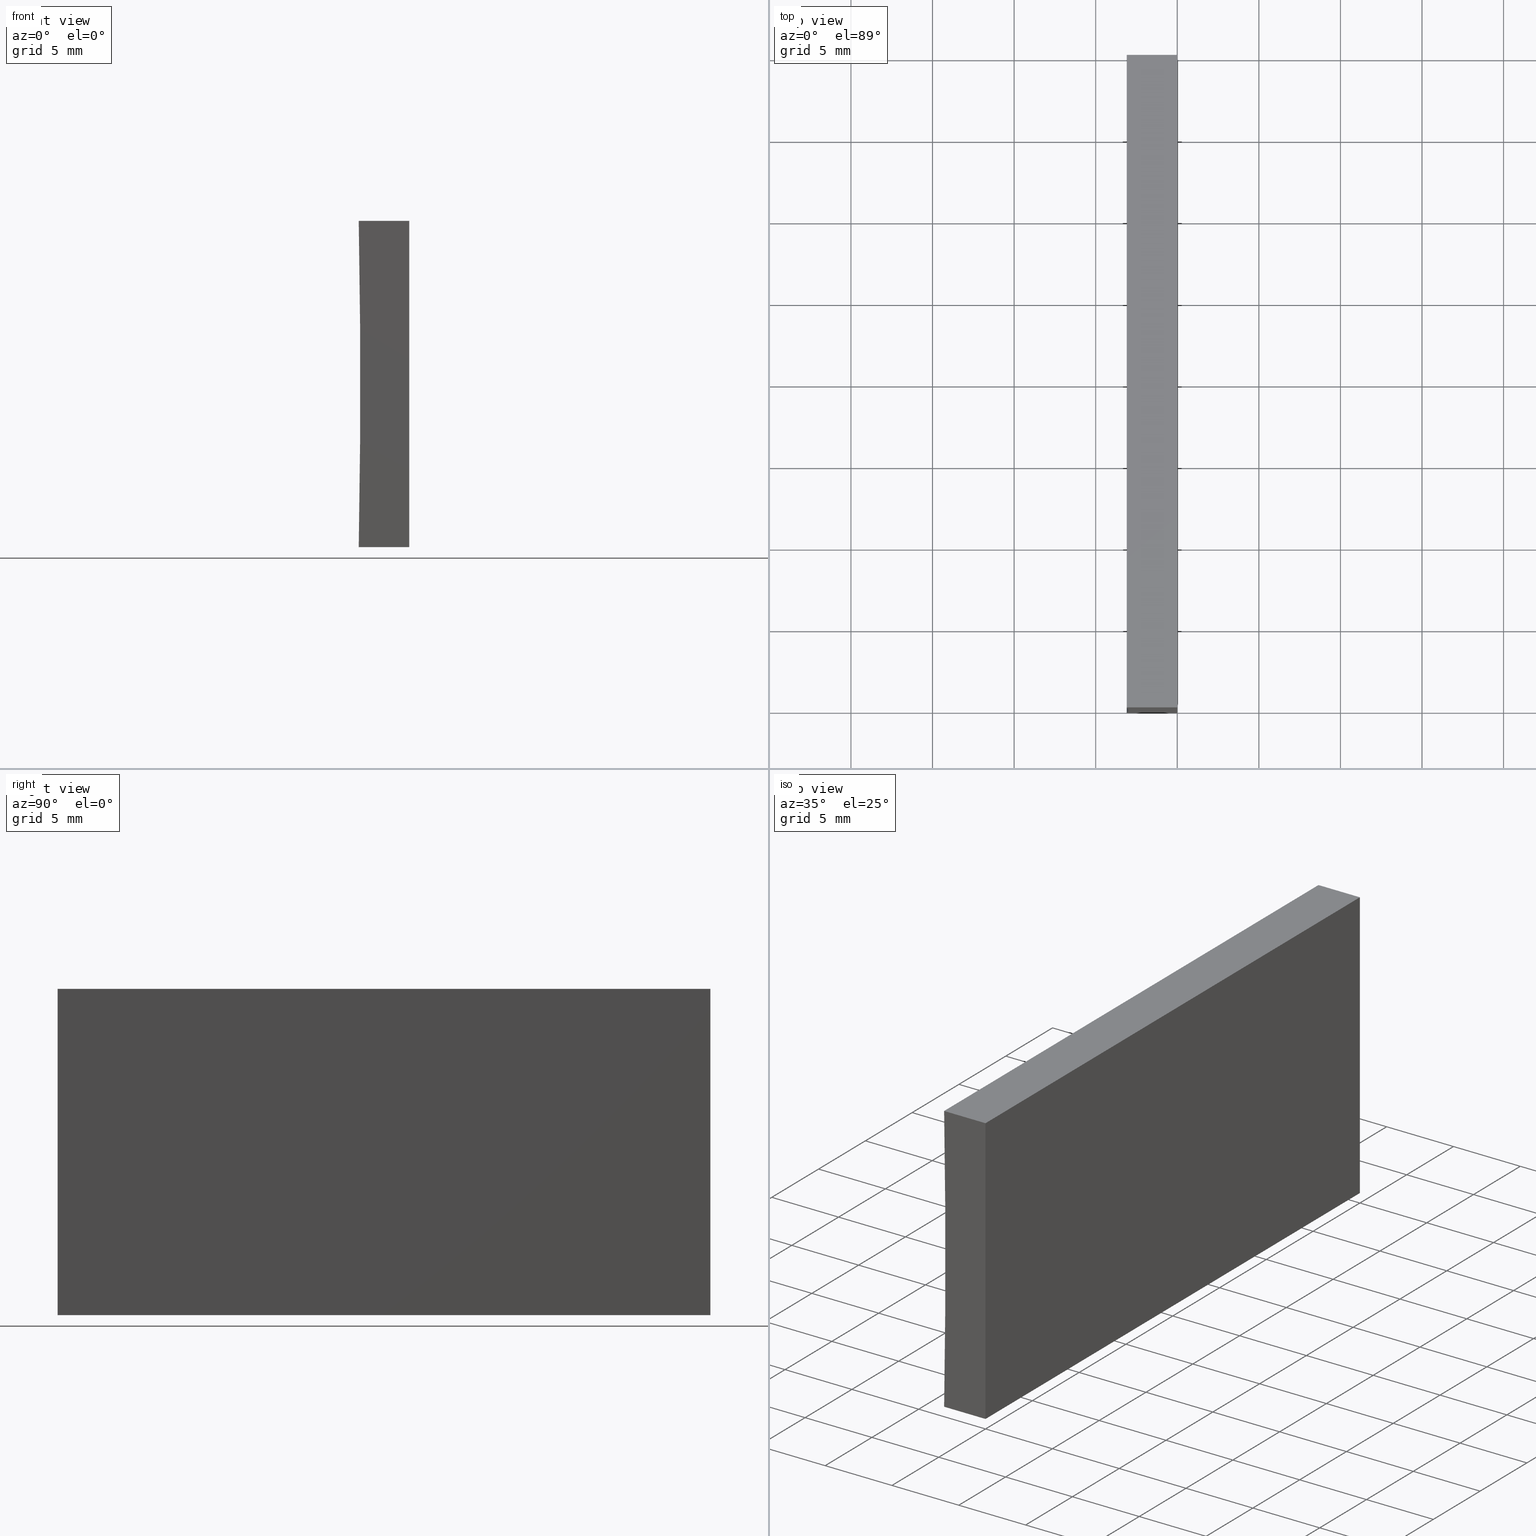
[diagram: canonical four-view strip — front | top / right | iso, engineering-drawing reading convention]
A machine part, canonical four-view strip (front | top / right | iso — engineering-drawing reading convention). The complete STEP part file that produces these views, byte-faithful:
ISO-10303-21;
HEADER;
FILE_DESCRIPTION (( 'STEP AP214' ),
    '1' );
FILE_NAME ('155362.STEP',
    '2019-06-28T07:38:13',
    ( 'user' ),
    ( '΢���й�' ),
    'SwSTEP 2.0',
    'SolidWorks 2016',
    '' );
FILE_SCHEMA (( 'AUTOMOTIVE_DESIGN' ));
ENDSEC;

DATA;
#1 = ORIENTED_EDGE ( 'NONE', *, *, #39, .T. ) ;
#2 = LINE ( 'NONE', #131, #57 ) ;
#3 = CARTESIAN_POINT ( 'NONE',  ( -3.096758283828826600, 40.00000000000000000, 5.204170427930421300E-014 ) ) ;
#4 = ORIENTED_EDGE ( 'NONE', *, *, #154, .F. ) ;
#5 = CARTESIAN_POINT ( 'NONE',  ( 0.0000000000000000000, 40.00000000000000000, 0.0000000000000000000 ) ) ;
#6 = APPLICATION_PROTOCOL_DEFINITION ( 'draft international standard', 'automotive_design', 1998, #8 ) ;
#7 = ORIENTED_EDGE ( 'NONE', *, *, #34, .T. ) ;
#8 = APPLICATION_CONTEXT ( 'automotive_design' ) ;
#9 = SURFACE_SIDE_STYLE ('',( #188 ) ) ;
#10 = VECTOR ( 'NONE', #46, 1000.000000000000000 ) ;
#11 =( GEOMETRIC_REPRESENTATION_CONTEXT ( 3 ) GLOBAL_UNCERTAINTY_ASSIGNED_CONTEXT ( ( #156 ) ) GLOBAL_UNIT_ASSIGNED_CONTEXT ( ( #178, #122, #88 ) ) REPRESENTATION_CONTEXT ( 'NONE', 'WORKASPACE' ) );
#12 = VERTEX_POINT ( 'NONE', #170 ) ;
#13 = PLANE ( 'NONE',  #51 ) ;
#14 = LINE ( 'NONE', #71, #115 ) ;
#15 = PLANE ( 'NONE',  #185 ) ;
#16 = UNCERTAINTY_MEASURE_WITH_UNIT (LENGTH_MEASURE( 1.000000000000000100E-005 ), #75, 'distance_accuracy_value', 'NONE');
#17 = EDGE_CURVE ( 'NONE', #120, #93, #117, .T. ) ;
#18 = ADVANCED_FACE ( 'NONE', ( #121 ), #162, .F. ) ;
#19 = EDGE_CURVE ( 'NONE', #52, #82, #148, .T. ) ;
#20 = CARTESIAN_POINT ( 'NONE',  ( -519.7999999999999500, 0.0000000000000000000, 10.00000000000006200 ) ) ;
#21 = CARTESIAN_POINT ( 'NONE',  ( 0.0000000000000000000, 40.00000000000000000, 0.0000000000000000000 ) ) ;
#22 = ORIENTED_EDGE ( 'NONE', *, *, #189, .T. ) ;
#23 = CARTESIAN_POINT ( 'NONE',  ( -3.096758283828826600, 0.0000000000000000000, 5.204170427930421300E-014 ) ) ;
#24 = APPLICATION_PROTOCOL_DEFINITION ( 'draft international standard', 'automotive_design', 1998, #174 ) ;
#25 = DIRECTION ( 'NONE',  ( -0.0000000000000000000, -1.000000000000000000, -0.0000000000000000000 ) ) ;
#26 = ORIENTED_EDGE ( 'NONE', *, *, #154, .T. ) ;
#27 = FILL_AREA_STYLE_COLOUR ( '', #203 ) ;
#28 = DIRECTION ( 'NONE',  ( 1.000000000000000000, -0.0000000000000000000, 1.120348000704784800E-015 ) ) ;
#29 = COLOUR_RGB ( '',1.000000000000000000, 1.000000000000000000, 1.000000000000000000 ) ;
#30 = DIRECTION ( 'NONE',  ( 0.0000000000000000000, 1.000000000000000000, 0.0000000000000000000 ) ) ;
#31 = ORIENTED_EDGE ( 'NONE', *, *, #181, .F. ) ;
#32 = DIRECTION ( 'NONE',  ( 0.0000000000000000000, -0.0000000000000000000, 1.000000000000000000 ) ) ;
#33 = EDGE_CURVE ( 'NONE', #153, #93, #177, .T. ) ;
#34 = EDGE_CURVE ( 'NONE', #100, #12, #163, .T. ) ;
#35 = STYLED_ITEM ( 'NONE', ( #200 ), #133 ) ;
#36 = ADVANCED_FACE ( 'NONE', ( #112 ), #13, .F. ) ;
#37 = PRODUCT_DEFINITION ( 'δ֪', '', #143, #172 ) ;
#38 = ORIENTED_EDGE ( 'NONE', *, *, #17, .F. ) ;
#39 = EDGE_CURVE ( 'NONE', #93, #82, #183, .T. ) ;
#40 = DIRECTION ( 'NONE',  ( -0.0000000000000000000, -1.000000000000000000, -0.0000000000000000000 ) ) ;
#41 = MECHANICAL_DESIGN_GEOMETRIC_PRESENTATION_REPRESENTATION (  '', ( #35 ), #68 ) ;
#42 =( GEOMETRIC_REPRESENTATION_CONTEXT ( 3 ) GLOBAL_UNCERTAINTY_ASSIGNED_CONTEXT ( ( #50 ) ) GLOBAL_UNIT_ASSIGNED_CONTEXT ( ( #48, #202, #175 ) ) REPRESENTATION_CONTEXT ( 'NONE', 'WORKASPACE' ) );
#43 = EDGE_CURVE ( 'NONE', #52, #100, #104, .T. ) ;
#44 = ORIENTED_EDGE ( 'NONE', *, *, #19, .F. ) ;
#45 = SHAPE_DEFINITION_REPRESENTATION ( #199, #164 ) ;
#46 = DIRECTION ( 'NONE',  ( -1.000000000000000000, 0.0000000000000000000, 1.120348000704784400E-015 ) ) ;
#47 = CARTESIAN_POINT ( 'NONE',  ( 0.0000000000000000000, 40.00000000000000000, 0.0000000000000000000 ) ) ;
#48 =( LENGTH_UNIT ( ) NAMED_UNIT ( * ) SI_UNIT ( .MILLI., .METRE. ) );
#49 = DIRECTION ( 'NONE',  ( 1.120348000704784400E-015, -0.0000000000000000000, 1.000000000000000000 ) ) ;
#50 = UNCERTAINTY_MEASURE_WITH_UNIT (LENGTH_MEASURE( 1.000000000000000100E-005 ), #48, 'distance_accuracy_value', 'NONE');
#51 = AXIS2_PLACEMENT_3D ( 'NONE', #190, #49, #150 ) ;
#52 = VERTEX_POINT ( 'NONE', #5 ) ;
#53 = DIRECTION ( 'NONE',  ( -1.000000000000000000, 0.0000000000000000000, 1.120348000704784400E-015 ) ) ;
#54 = AXIS2_PLACEMENT_3D ( 'NONE', #55, #195, #83 ) ;
#55 = CARTESIAN_POINT ( 'NONE',  ( 0.0000000000000000000, 0.0000000000000000000, 0.0000000000000000000 ) ) ;
#56 = PRESENTATION_LAYER_ASSIGNMENT (  '', '', ( #158 ) ) ;
#57 = VECTOR ( 'NONE', #28, 1000.000000000000000 ) ;
#58 = EDGE_LOOP ( 'NONE', ( #118, #7, #166, #144 ) ) ;
#59 = EDGE_LOOP ( 'NONE', ( #116, #106, #179, #187 ) ) ;
#60 = PRODUCT_CONTEXT ( 'NONE', #8, 'mechanical' ) ;
#61 = DIRECTION ( 'NONE',  ( 0.0000000000000000000, 1.000000000000000000, 0.0000000000000000000 ) ) ;
#62 = EDGE_LOOP ( 'NONE', ( #1, #44, #31, #86 ) ) ;
#63 = VECTOR ( 'NONE', #76, 1000.000000000000000 ) ;
#64 = ADVANCED_FACE ( 'NONE', ( #69 ), #152, .F. ) ;
#65 = DIRECTION ( 'NONE',  ( -0.0000000000000000000, -1.000000000000000000, -0.0000000000000000000 ) ) ;
#66 = AXIS2_PLACEMENT_3D ( 'NONE', #110, #184, #137 ) ;
#67 = MECHANICAL_DESIGN_GEOMETRIC_PRESENTATION_REPRESENTATION (  '', ( #158 ), #11 ) ;
#68 =( GEOMETRIC_REPRESENTATION_CONTEXT ( 3 ) GLOBAL_UNCERTAINTY_ASSIGNED_CONTEXT ( ( #16 ) ) GLOBAL_UNIT_ASSIGNED_CONTEXT ( ( #75, #79, #90 ) ) REPRESENTATION_CONTEXT ( 'NONE', 'WORKASPACE' ) );
#69 = FACE_OUTER_BOUND ( 'NONE', #62, .T. ) ;
#70 = AXIS2_PLACEMENT_3D ( 'NONE', #87, #165, #89 ) ;
#71 = CARTESIAN_POINT ( 'NONE',  ( 0.0000000000000000000, 0.0000000000000000000, 0.0000000000000000000 ) ) ;
#72 = CARTESIAN_POINT ( 'NONE',  ( 0.0000000000000000000, 0.0000000000000000000, 0.0000000000000000000 ) ) ;
#73 = EDGE_LOOP ( 'NONE', ( #149, #103, #145, #26 ) ) ;
#74 = PLANE ( 'NONE',  #97 ) ;
#75 =( LENGTH_UNIT ( ) NAMED_UNIT ( * ) SI_UNIT ( .MILLI., .METRE. ) );
#76 = DIRECTION ( 'NONE',  ( 1.000000000000000000, -0.0000000000000000000, 1.120348000704784800E-015 ) ) ;
#77 = FILL_AREA_STYLE_COLOUR ( '', #29 ) ;
#78 = CARTESIAN_POINT ( 'NONE',  ( -519.7999999999999500, 0.0000000000000000000, 10.00000000000006200 ) ) ;
#79 =( NAMED_UNIT ( * ) PLANE_ANGLE_UNIT ( ) SI_UNIT ( $, .RADIAN. ) );
#80 = VECTOR ( 'NONE', #25, 1000.000000000000000 ) ;
#81 = ORIENTED_EDGE ( 'NONE', *, *, #19, .T. ) ;
#82 = VERTEX_POINT ( 'NONE', #72 ) ;
#83 = DIRECTION ( 'NONE',  ( 1.000000000000000000, 0.0000000000000000000, 0.0000000000000000000 ) ) ;
#84 = PRESENTATION_LAYER_ASSIGNMENT (  '', '', ( #35 ) ) ;
#85 = VECTOR ( 'NONE', #107, 1000.000000000000000 ) ;
#86 = ORIENTED_EDGE ( 'NONE', *, *, #17, .T. ) ;
#87 = CARTESIAN_POINT ( 'NONE',  ( 0.0000000000000000000, 40.00000000000000000, 0.0000000000000000000 ) ) ;
#88 =( NAMED_UNIT ( * ) SI_UNIT ( $, .STERADIAN. ) SOLID_ANGLE_UNIT ( ) );
#89 = DIRECTION ( 'NONE',  ( 6.123233995736766000E-017, 0.0000000000000000000, 1.000000000000000000 ) ) ;
#90 =( NAMED_UNIT ( * ) SI_UNIT ( $, .STERADIAN. ) SOLID_ANGLE_UNIT ( ) );
#91 = CLOSED_SHELL ( 'NONE', ( #36, #204, #18, #64, #169, #197 ) ) ;
#92 = FILL_AREA_STYLE ('',( #27 ) ) ;
#93 = VERTEX_POINT ( 'NONE', #105 ) ;
#94 = EDGE_CURVE ( 'NONE', #12, #153, #132, .T. ) ;
#95 = CARTESIAN_POINT ( 'NONE',  ( -3.096758283828826600, 40.00000000000000000, 5.204170427930421300E-014 ) ) ;
#96 = VECTOR ( 'NONE', #98, 1000.000000000000000 ) ;
#97 = AXIS2_PLACEMENT_3D ( 'NONE', #20, #61, #146 ) ;
#98 = DIRECTION ( 'NONE',  ( -0.0000000000000000000, -1.000000000000000000, -0.0000000000000000000 ) ) ;
#99 = EDGE_CURVE ( 'NONE', #12, #120, #2, .T. ) ;
#100 = VERTEX_POINT ( 'NONE', #95 ) ;
#101 = PRESENTATION_STYLE_ASSIGNMENT (( #113 ) ) ;
#102 = CYLINDRICAL_SURFACE ( 'NONE', #151, 516.7999999999999500 ) ;
#103 = ORIENTED_EDGE ( 'NONE', *, *, #94, .F. ) ;
#104 = LINE ( 'NONE', #47, #10 ) ;
#105 = CARTESIAN_POINT ( 'NONE',  ( 1.224646799147353300E-015, 0.0000000000000000000, 20.00000000000000000 ) ) ;
#106 = ORIENTED_EDGE ( 'NONE', *, *, #39, .F. ) ;
#107 = DIRECTION ( 'NONE',  ( -6.123233995736766000E-017, -0.0000000000000000000, -1.000000000000000000 ) ) ;
#108 = CARTESIAN_POINT ( 'NONE',  ( 1.224646799147353300E-015, 40.00000000000000000, 20.00000000000000000 ) ) ;
#109 = CARTESIAN_POINT ( 'NONE',  ( 0.0000000000000000000, 0.0000000000000000000, 0.0000000000000000000 ) ) ;
#110 = CARTESIAN_POINT ( 'NONE',  ( 1.224646799147353300E-015, 40.00000000000000000, 20.00000000000000000 ) ) ;
#111 = CARTESIAN_POINT ( 'NONE',  ( -519.7999999999999500, 40.00000000000000000, 10.00000000000006200 ) ) ;
#112 = FACE_OUTER_BOUND ( 'NONE', #126, .T. ) ;
#113 = SURFACE_STYLE_USAGE ( .BOTH. , #9 ) ;
#114 = FILL_AREA_STYLE ('',( #77 ) ) ;
#115 = VECTOR ( 'NONE', #53, 1000.000000000000000 ) ;
#116 = ORIENTED_EDGE ( 'NONE', *, *, #189, .F. ) ;
#117 = LINE ( 'NONE', #180, #96 ) ;
#118 = ORIENTED_EDGE ( 'NONE', *, *, #43, .T. ) ;
#119 = AXIS2_PLACEMENT_3D ( 'NONE', #125, #142, #182 ) ;
#120 = VERTEX_POINT ( 'NONE', #108 ) ;
#121 = FACE_OUTER_BOUND ( 'NONE', #186, .T. ) ;
#122 =( NAMED_UNIT ( * ) PLANE_ANGLE_UNIT ( ) SI_UNIT ( $, .RADIAN. ) );
#123 = VERTEX_POINT ( 'NONE', #23 ) ;
#124 = CARTESIAN_POINT ( 'NONE',  ( -3.096758283828832300, 0.0000000000000000000, 19.99999999999999600 ) ) ;
#125 = CARTESIAN_POINT ( 'NONE',  ( -519.7999999999999500, 40.00000000000000000, 10.00000000000006200 ) ) ;
#126 = EDGE_LOOP ( 'NONE', ( #22, #4, #139, #81 ) ) ;
#127 = PRODUCT_RELATED_PRODUCT_CATEGORY ( 'part', '', ( #191 ) ) ;
#128 = SURFACE_STYLE_USAGE ( .BOTH. , #194 ) ;
#129 = DIRECTION ( 'NONE',  ( -0.0000000000000000000, -1.000000000000000000, -0.0000000000000000000 ) ) ;
#130 = DIRECTION ( 'NONE',  ( -6.123233995736766000E-017, -0.0000000000000000000, -1.000000000000000000 ) ) ;
#131 = CARTESIAN_POINT ( 'NONE',  ( 1.224646799147353300E-015, 40.00000000000000000, 20.00000000000000000 ) ) ;
#132 = LINE ( 'NONE', #173, #80 ) ;
#133 = MANIFOLD_SOLID_BREP ( '͹̨-����1', #91 ) ;
#134 = VECTOR ( 'NONE', #129, 1000.000000000000000 ) ;
#135 = VECTOR ( 'NONE', #40, 1000.000000000000000 ) ;
#136 = CARTESIAN_POINT ( 'NONE',  ( -519.7999999999999500, 40.00000000000000000, 10.00000000000006200 ) ) ;
#137 = DIRECTION ( 'NONE',  ( -1.000000000000000000, 0.0000000000000000000, -1.120348000704784800E-015 ) ) ;
#138 = FACE_OUTER_BOUND ( 'NONE', #59, .T. ) ;
#139 = ORIENTED_EDGE ( 'NONE', *, *, #43, .F. ) ;
#140 = ORIENTED_EDGE ( 'NONE', *, *, #94, .T. ) ;
#141 = CARTESIAN_POINT ( 'NONE',  ( 0.0000000000000000000, 40.00000000000000000, 0.0000000000000000000 ) ) ;
#142 = DIRECTION ( 'NONE',  ( -0.0000000000000000000, -1.000000000000000000, -0.0000000000000000000 ) ) ;
#143 = PRODUCT_DEFINITION_FORMATION_WITH_SPECIFIED_SOURCE ( '�κ�', '', #191, .NOT_KNOWN. ) ;
#144 = ORIENTED_EDGE ( 'NONE', *, *, #181, .T. ) ;
#145 = ORIENTED_EDGE ( 'NONE', *, *, #34, .F. ) ;
#146 = DIRECTION ( 'NONE',  ( 0.0000000000000000000, -0.0000000000000000000, 1.000000000000000000 ) ) ;
#147 = DIRECTION ( 'NONE',  ( 0.0000000000000000000, 0.0000000000000000000, -1.000000000000000000 ) ) ;
#148 = LINE ( 'NONE', #21, #135 ) ;
#149 = ORIENTED_EDGE ( 'NONE', *, *, #192, .T. ) ;
#150 = DIRECTION ( 'NONE',  ( 1.000000000000000000, 0.0000000000000000000, -1.120348000704784400E-015 ) ) ;
#151 = AXIS2_PLACEMENT_3D ( 'NONE', #136, #65, #147 ) ;
#152 = PLANE ( 'NONE',  #70 ) ;
#153 = VERTEX_POINT ( 'NONE', #124 ) ;
#154 = EDGE_CURVE ( 'NONE', #100, #123, #167, .T. ) ;
#155 = CIRCLE ( 'NONE', #198, 516.7999999999999500 ) ;
#156 = UNCERTAINTY_MEASURE_WITH_UNIT (LENGTH_MEASURE( 1.000000000000000100E-005 ), #178, 'distance_accuracy_value', 'NONE');
#157 = ORIENTED_EDGE ( 'NONE', *, *, #33, .T. ) ;
#158 = STYLED_ITEM ( 'NONE', ( #101 ), #164 ) ;
#159 = FACE_OUTER_BOUND ( 'NONE', #58, .T. ) ;
#160 = DIRECTION ( 'NONE',  ( 0.0000000000000000000, 0.0000000000000000000, 1.000000000000000000 ) ) ;
#161 = DIRECTION ( 'NONE',  ( -0.0000000000000000000, -1.000000000000000000, -0.0000000000000000000 ) ) ;
#162 = PLANE ( 'NONE',  #66 ) ;
#163 = CIRCLE ( 'NONE', #119, 516.7999999999999500 ) ;
#164 = ADVANCED_BREP_SHAPE_REPRESENTATION ( '155362', ( #133, #54 ), #42 ) ;
#165 = DIRECTION ( 'NONE',  ( -1.000000000000000000, 0.0000000000000000000, 6.123233995736766000E-017 ) ) ;
#166 = ORIENTED_EDGE ( 'NONE', *, *, #99, .T. ) ;
#167 = LINE ( 'NONE', #3, #134 ) ;
#168 = LINE ( 'NONE', #141, #85 ) ;
#169 = ADVANCED_FACE ( 'NONE', ( #159 ), #15, .T. ) ;
#170 = CARTESIAN_POINT ( 'NONE',  ( -3.096758283828832300, 40.00000000000000000, 19.99999999999999600 ) ) ;
#171 = CARTESIAN_POINT ( 'NONE',  ( 1.224646799147353300E-015, 0.0000000000000000000, 20.00000000000000000 ) ) ;
#172 = PRODUCT_DEFINITION_CONTEXT ( 'detailed design', #174, 'design' ) ;
#173 = CARTESIAN_POINT ( 'NONE',  ( -3.096758283828832300, 40.00000000000000000, 19.99999999999999600 ) ) ;
#174 = APPLICATION_CONTEXT ( 'automotive_design' ) ;
#175 =( NAMED_UNIT ( * ) SI_UNIT ( $, .STERADIAN. ) SOLID_ANGLE_UNIT ( ) );
#176 = SURFACE_STYLE_FILL_AREA ( #114 ) ;
#177 = LINE ( 'NONE', #171, #63 ) ;
#178 =( LENGTH_UNIT ( ) NAMED_UNIT ( * ) SI_UNIT ( .MILLI., .METRE. ) );
#179 = ORIENTED_EDGE ( 'NONE', *, *, #33, .F. ) ;
#180 = CARTESIAN_POINT ( 'NONE',  ( 1.224646799147353300E-015, 40.00000000000000000, 20.00000000000000000 ) ) ;
#181 = EDGE_CURVE ( 'NONE', #120, #52, #168, .T. ) ;
#182 = DIRECTION ( 'NONE',  ( 0.0000000000000000000, 0.0000000000000000000, 1.000000000000000000 ) ) ;
#183 = LINE ( 'NONE', #109, #193 ) ;
#184 = DIRECTION ( 'NONE',  ( 1.120348000704784800E-015, 0.0000000000000000000, -1.000000000000000000 ) ) ;
#185 = AXIS2_PLACEMENT_3D ( 'NONE', #111, #30, #32 ) ;
#186 = EDGE_LOOP ( 'NONE', ( #157, #38, #201, #140 ) ) ;
#187 = ORIENTED_EDGE ( 'NONE', *, *, #192, .F. ) ;
#188 = SURFACE_STYLE_FILL_AREA ( #92 ) ;
#189 = EDGE_CURVE ( 'NONE', #82, #123, #14, .T. ) ;
#190 = CARTESIAN_POINT ( 'NONE',  ( 0.0000000000000000000, 40.00000000000000000, 0.0000000000000000000 ) ) ;
#191 = PRODUCT ( '155362', '155362', '', ( #60 ) ) ;
#192 = EDGE_CURVE ( 'NONE', #123, #153, #155, .T. ) ;
#193 = VECTOR ( 'NONE', #130, 1000.000000000000000 ) ;
#194 = SURFACE_SIDE_STYLE ('',( #176 ) ) ;
#195 = DIRECTION ( 'NONE',  ( 0.0000000000000000000, 0.0000000000000000000, 1.000000000000000000 ) ) ;
#196 = FACE_OUTER_BOUND ( 'NONE', #73, .T. ) ;
#197 = ADVANCED_FACE ( 'NONE', ( #138 ), #74, .F. ) ;
#198 = AXIS2_PLACEMENT_3D ( 'NONE', #78, #161, #160 ) ;
#199 = PRODUCT_DEFINITION_SHAPE ( 'NONE', 'NONE',  #37 ) ;
#200 = PRESENTATION_STYLE_ASSIGNMENT (( #128 ) ) ;
#201 = ORIENTED_EDGE ( 'NONE', *, *, #99, .F. ) ;
#202 =( NAMED_UNIT ( * ) PLANE_ANGLE_UNIT ( ) SI_UNIT ( $, .RADIAN. ) );
#203 = COLOUR_RGB ( '',1.000000000000000000, 1.000000000000000000, 1.000000000000000000 ) ;
#204 = ADVANCED_FACE ( 'NONE', ( #196 ), #102, .F. ) ;
ENDSEC;
END-ISO-10303-21;
